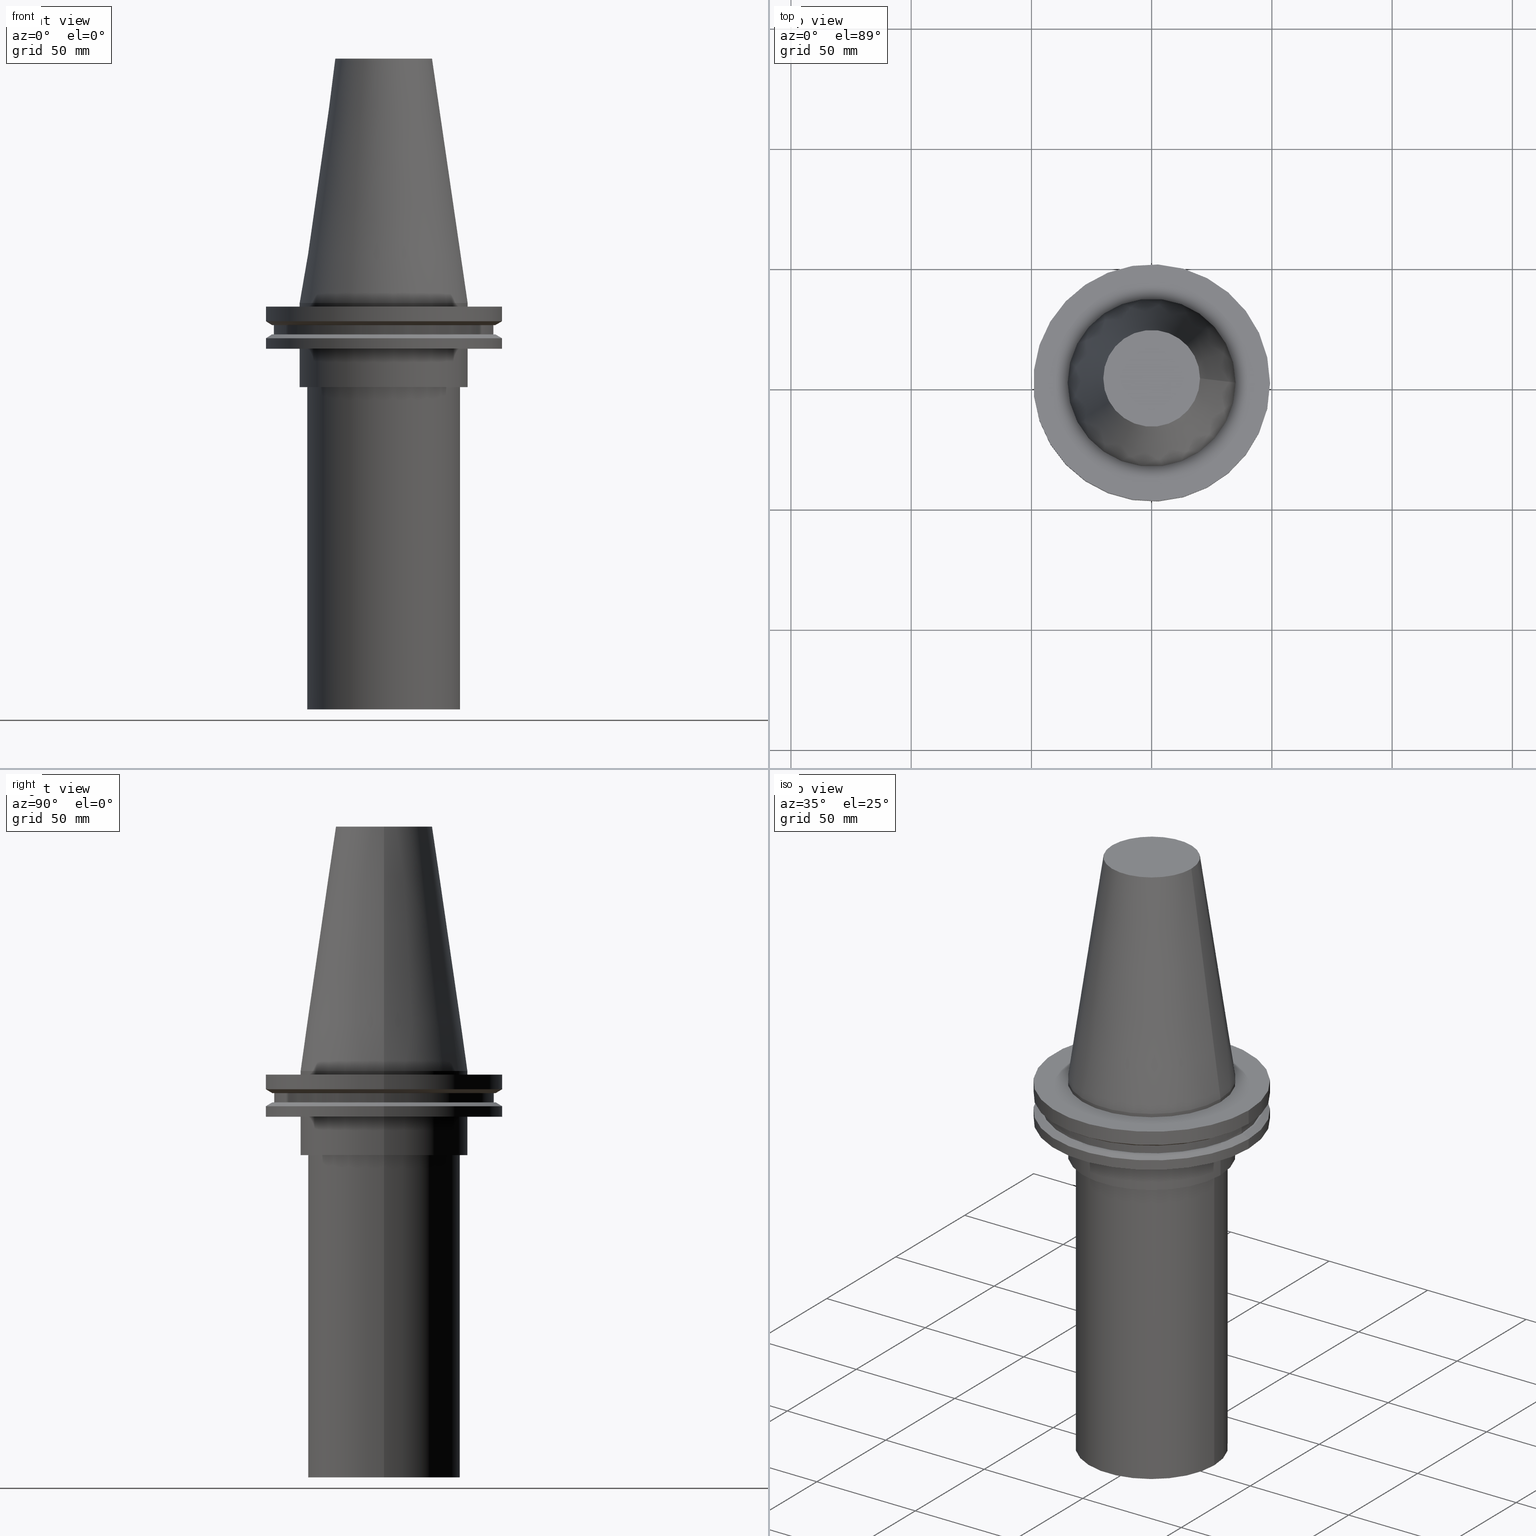
[diagram: canonical four-view strip — front | top / right | iso, engineering-drawing reading convention]
A machine part, canonical four-view strip (front | top / right | iso — engineering-drawing reading convention). The complete STEP part file that produces these views, byte-faithful:
ISO-10303-21;
HEADER;
FILE_DESCRIPTION (( 'STEP AP203' ),
    '1' );
FILE_NAME ('11.368.665.stp',
    '2022-03-09T15:22:32',
    ( '' ),
    ( '' ),
    'SwSTEP 2.0',
    'SolidWorks 2021',
    '' );
FILE_SCHEMA (( 'CONFIG_CONTROL_DESIGN' ));
ENDSEC;

DATA;
#1 = AXIS2_PLACEMENT_3D ( 'NONE', #275, #333, #384 ) ;
#2 = EDGE_LOOP ( 'NONE', ( #119 ) ) ;
#3 = EDGE_CURVE ( 'NONE', #378, #378, #23, .T. ) ;
#4 = CARTESIAN_POINT ( 'NONE',  ( 0.000000000000000000, 45.64500000000000313, -13.05499999999999794 ) ) ;
#5 = DIRECTION ( 'NONE',  ( -0.000000000000000000, -0.000000000000000000, 1.000000000000000000 ) ) ;
#6 = CC_DESIGN_PERSON_AND_ORGANIZATION_ASSIGNMENT ( #24, #110, ( #48 ) ) ;
#7 = CARTESIAN_POINT ( 'NONE',  ( 49.21500000000000341, 0.000000000000000000, -7.602389855251287187 ) ) ;
#8 = EDGE_LOOP ( 'NONE', ( #249 ) ) ;
#9 = PLANE ( 'NONE',  #140 ) ;
#10 = CIRCLE ( 'NONE', #30, 45.64500000000000313 ) ;
#11 = VERTEX_POINT ( 'NONE', #219 ) ;
#12 = CARTESIAN_POINT ( 'NONE',  ( 0.000000000000000000, 49.21499999999998920, -19.04999999999999716 ) ) ;
#13 = FACE_OUTER_BOUND ( 'NONE', #62, .T. ) ;
#14 = CARTESIAN_POINT ( 'NONE',  ( 34.92499999999999716, 0.000000000000000000, -19.04999999999999716 ) ) ;
#15 = DIRECTION ( 'NONE',  ( -0.000000000000000000, -0.000000000000000000, 1.000000000000000000 ) ) ;
#16 = VERTEX_POINT ( 'NONE', #46 ) ;
#17 = ADVANCED_FACE ( 'NONE', ( #238, #52 ), #115, .F. ) ;
#18 = APPROVAL_ROLE ( '' ) ;
#19 = DIRECTION ( 'NONE',  ( 1.000000000000000000, 0.000000000000000000, 0.000000000000000000 ) ) ;
#20 = EDGE_CURVE ( 'NONE', #352, #352, #197, .T. ) ;
#21 = AXIS2_PLACEMENT_3D ( 'NONE', #38, #215, #156 ) ;
#22 = EDGE_LOOP ( 'NONE', ( #152 ) ) ;
#23 = CIRCLE ( 'NONE', #71, 31.75000000000000000 ) ;
#24 = PERSON_AND_ORGANIZATION ( #216, #173 ) ;
#25 = EDGE_LOOP ( 'NONE', ( #157 ) ) ;
#26 = PERSON_AND_ORGANIZATION ( #216, #173 ) ;
#27 = EDGE_LOOP ( 'NONE', ( #111 ) ) ;
#28 = EDGE_CURVE ( 'NONE', #11, #11, #10, .T. ) ;
#29 = CIRCLE ( 'NONE', #271, 46.43919780457007818 ) ;
#30 = AXIS2_PLACEMENT_3D ( 'NONE', #235, #303, #142 ) ;
#31 = CARTESIAN_POINT ( 'NONE',  ( 0.000000000000000000, 0.000000000000000000, 101.5999999999999943 ) ) ;
#32 = EDGE_CURVE ( 'NONE', #128, #128, #366, .T. ) ;
#33 = EDGE_LOOP ( 'NONE', ( #96 ) ) ;
#34 = CIRCLE ( 'NONE', #313, 34.92499999999999005 ) ;
#35 = DIRECTION ( 'NONE',  ( -0.000000000000000000, -0.000000000000000000, 1.000000000000000000 ) ) ;
#36 = VERTEX_POINT ( 'NONE', #132 ) ;
#37 = EDGE_LOOP ( 'NONE', ( #117 ) ) ;
#38 = CARTESIAN_POINT ( 'NONE',  ( 0.000000000000000000, 0.000000000000000000, 0.000000000000000000 ) ) ;
#39 = ADVANCED_FACE ( 'NONE', ( #390, #356 ), #214, .T. ) ;
#40 =( LENGTH_UNIT ( ) NAMED_UNIT ( * ) SI_UNIT ( .MILLI., .METRE. ) );
#41 = CARTESIAN_POINT ( 'NONE',  ( 0.000000000000000000, 0.000000000000000000, -169.0000000000000000 ) ) ;
#42 = DIRECTION ( 'NONE',  ( 1.000000000000000000, 0.000000000000000000, 0.000000000000000000 ) ) ;
#43 = PRODUCT_DEFINITION ( 'UNKNOWN', '', #224, #207 ) ;
#44 = AXIS2_PLACEMENT_3D ( 'NONE', #211, #55, #334 ) ;
#45 = FACE_OUTER_BOUND ( 'NONE', #191, .T. ) ;
#46 = CARTESIAN_POINT ( 'NONE',  ( 46.43919780457007818, 0.000000000000000000, -9.204999999999991189 ) ) ;
#47 = ADVANCED_FACE ( 'NONE', ( #325, #204 ), #299, .T. ) ;
#48 = SECURITY_CLASSIFICATION ( '', '', #81 ) ;
#49 = APPLICATION_PROTOCOL_DEFINITION ( 'international standard', 'config_control_design', 1994, #94 ) ;
#50 = CC_DESIGN_DATE_AND_TIME_ASSIGNMENT ( #326, #171, ( #43 ) ) ;
#51 = DATE_TIME_ROLE ( 'classification_date' ) ;
#52 = FACE_BOUND ( 'NONE', #283, .T. ) ;
#53 = PERSON_AND_ORGANIZATION_ROLE ( 'creator' ) ;
#54 = EDGE_LOOP ( 'NONE', ( #365 ) ) ;
#55 = DIRECTION ( 'NONE',  ( -0.000000000000000000, -0.000000000000000000, 1.000000000000000000 ) ) ;
#56 = CARTESIAN_POINT ( 'NONE',  ( 0.000000000000000000, 0.000000000000000000, 0.000000000000000000 ) ) ;
#57 = ORIENTED_EDGE ( 'NONE', *, *, #64, .T. ) ;
#58 = DIRECTION ( 'NONE',  ( -1.000000000000000000, 0.000000000000000000, -0.000000000000000000 ) ) ;
#59 = EDGE_LOOP ( 'NONE', ( #69 ) ) ;
#60 = CIRCLE ( 'NONE', #296, 45.64500000000000313 ) ;
#61 = FACE_OUTER_BOUND ( 'NONE', #237, .T. ) ;
#62 = EDGE_LOOP ( 'NONE', ( #150 ) ) ;
#63 = DIRECTION ( 'NONE',  ( -0.000000000000000000, -0.000000000000000000, 1.000000000000000000 ) ) ;
#64 = EDGE_CURVE ( 'NONE', #36, #36, #322, .T. ) ;
#65 = FACE_BOUND ( 'NONE', #8, .T. ) ;
#66 = ORIENTED_EDGE ( 'NONE', *, *, #32, .F. ) ;
#67 = FACE_OUTER_BOUND ( 'NONE', #22, .T. ) ;
#68 = DIRECTION ( 'NONE',  ( 1.000000000000000000, 0.000000000000000000, 0.000000000000000000 ) ) ;
#69 = ORIENTED_EDGE ( 'NONE', *, *, #113, .F. ) ;
#70 = FACE_BOUND ( 'NONE', #315, .T. ) ;
#71 = AXIS2_PLACEMENT_3D ( 'NONE', #41, #126, #331 ) ;
#72 = CARTESIAN_POINT ( 'NONE',  ( 0.000000000000000000, 0.000000000000000000, -9.204999999999991189 ) ) ;
#73 = DIRECTION ( 'NONE',  ( -1.000000000000000000, 0.000000000000000000, -0.000000000000000000 ) ) ;
#74 = DIRECTION ( 'NONE',  ( 1.000000000000000000, 0.000000000000000000, 0.000000000000000000 ) ) ;
#75 = CC_DESIGN_PERSON_AND_ORGANIZATION_ASSIGNMENT ( #76, #53, ( #224 ) ) ;
#76 = PERSON_AND_ORGANIZATION ( #216, #173 ) ;
#77 = AXIS2_PLACEMENT_3D ( 'NONE', #270, #242, #106 ) ;
#78 = DIRECTION ( 'NONE',  ( -1.000000000000000000, 0.000000000000000000, 0.000000000000000000 ) ) ;
#79 = COORDINATED_UNIVERSAL_TIME_OFFSET ( 6, 0, .BEHIND. ) ;
#80 = DIRECTION ( 'NONE',  ( 1.000000000000000000, 0.000000000000000000, 0.000000000000000000 ) ) ;
#81 = SECURITY_CLASSIFICATION_LEVEL ( 'unclassified' ) ;
#82 = LOCAL_TIME ( 9, 22, 32.00000000000000000, #302 ) ;
#83 = ORIENTED_EDGE ( 'NONE', *, *, #280, .T. ) ;
#84 = DIRECTION ( 'NONE',  ( 1.000000000000000000, 0.000000000000000000, 0.000000000000000000 ) ) ;
#85 = UNCERTAINTY_MEASURE_WITH_UNIT (LENGTH_MEASURE( 1.000000000000000082E-05 ), #40, 'distance_accuracy_value', 'NONE');
#86 = DIRECTION ( 'NONE',  ( 0.000000000000000000, 0.000000000000000000, -1.000000000000000000 ) ) ;
#87 = DIRECTION ( 'NONE',  ( 0.000000000000000000, 0.000000000000000000, -1.000000000000000000 ) ) ;
#88 = AXIS2_PLACEMENT_3D ( 'NONE', #244, #86, #78 ) ;
#89 = EDGE_LOOP ( 'NONE', ( #221 ) ) ;
#90 = CARTESIAN_POINT ( 'NONE',  ( 0.000000000000000000, 0.000000000000000000, 101.5999999999999943 ) ) ;
#91 = CYLINDRICAL_SURFACE ( 'NONE', #272, 34.92499999999999005 ) ;
#92 = CC_DESIGN_APPROVAL ( #168, ( #48 ) ) ;
#93 = EDGE_LOOP ( 'NONE', ( #251 ) ) ;
#94 = APPLICATION_CONTEXT ( 'configuration controlled 3d designs of mechanical parts and assemblies' ) ;
#95 = CARTESIAN_POINT ( 'NONE',  ( 46.43919780457007818, 0.000000000000000000, -13.05499999999999794 ) ) ;
#96 = ORIENTED_EDGE ( 'NONE', *, *, #265, .T. ) ;
#97 = DIRECTION ( 'NONE',  ( 0.000000000000000000, -0.000000000000000000, 1.000000000000000000 ) ) ;
#98 = DIRECTION ( 'NONE',  ( -0.000000000000000000, -0.000000000000000000, 1.000000000000000000 ) ) ;
#99 = DIRECTION ( 'NONE',  ( -0.000000000000000000, -0.000000000000000000, 1.000000000000000000 ) ) ;
#100 = PLANE ( 'NONE',  #213 ) ;
#101 = CALENDAR_DATE ( 2022, 9, 3 ) ;
#102 = ADVANCED_FACE ( 'NONE', ( #112 ), #389, .F. ) ;
#103 = DATE_AND_TIME ( #383, #82 ) ;
#104 = LOCAL_TIME ( 9, 22, 32.00000000000000000, #143 ) ;
#105 = MECHANICAL_CONTEXT ( 'NONE', #94, 'mechanical' ) ;
#106 = DIRECTION ( 'NONE',  ( 1.000000000000000000, 0.000000000000000000, 0.000000000000000000 ) ) ;
#107 = MANIFOLD_SOLID_BREP ( 'CKB', #175 ) ;
#108 = APPROVAL_STATUS ( 'not_yet_approved' ) ;
#109 = DIRECTION ( 'NONE',  ( 0.000000000000000000, 0.000000000000000000, -1.000000000000000000 ) ) ;
#110 = PERSON_AND_ORGANIZATION_ROLE ( 'classification_officer' ) ;
#111 = ORIENTED_EDGE ( 'NONE', *, *, #20, .F. ) ;
#112 = FACE_OUTER_BOUND ( 'NONE', #345, .T. ) ;
#113 = EDGE_CURVE ( 'NONE', #286, #286, #228, .T. ) ;
#114 = AXIS2_PLACEMENT_3D ( 'NONE', #312, #35, #68 ) ;
#115 = PLANE ( 'NONE',  #308 ) ;
#116 = APPLICATION_CONTEXT ( 'configuration controlled 3d designs of mechanical parts and assemblies' ) ;
#117 = ORIENTED_EDGE ( 'NONE', *, *, #290, .T. ) ;
#118 = EDGE_CURVE ( 'NONE', #199, #199, #146, .T. ) ;
#119 = ORIENTED_EDGE ( 'NONE', *, *, #20, .T. ) ;
#120 = CYLINDRICAL_SURFACE ( 'NONE', #188, 49.21499999999999631 ) ;
#121 = APPROVAL ( #269, 'UNSPECIFIED' ) ;
#122 = EDGE_LOOP ( 'NONE', ( #367 ) ) ;
#123 = AXIS2_PLACEMENT_3D ( 'NONE', #257, #195, #320 ) ;
#124 = FACE_BOUND ( 'NONE', #93, .T. ) ;
#125 = CARTESIAN_POINT ( 'NONE',  ( 45.64500000000000313, 0.000000000000000000, -9.204999999999991189 ) ) ;
#126 = DIRECTION ( 'NONE',  ( -0.000000000000000000, -0.000000000000000000, 1.000000000000000000 ) ) ;
#127 = CARTESIAN_POINT ( 'NONE',  ( 0.000000000000000000, 0.000000000000000000, 0.000000000000000000 ) ) ;
#128 = VERTEX_POINT ( 'NONE', #259 ) ;
#129 = PLANE ( 'NONE',  #282 ) ;
#130 = ADVANCED_FACE ( 'NONE', ( #209, #179 ), #306, .F. ) ;
#131 = FACE_OUTER_BOUND ( 'NONE', #172, .T. ) ;
#132 = CARTESIAN_POINT ( 'NONE',  ( 20.10819343178871321, 0.000000000000000000, 101.5999999999999801 ) ) ;
#133 = DIRECTION ( 'NONE',  ( -0.000000000000000000, -0.000000000000000000, 1.000000000000000000 ) ) ;
#134 = CARTESIAN_POINT ( 'NONE',  ( 34.92499999999999716, 0.000000000000000000, -35.00000000000000000 ) ) ;
#135 = EDGE_CURVE ( 'NONE', #16, #16, #201, .T. ) ;
#136 = CALENDAR_DATE ( 2022, 9, 3 ) ;
#137 = PERSON_AND_ORGANIZATION ( #216, #173 ) ;
#138 = LOCAL_TIME ( 9, 22, 32.00000000000000000, #79 ) ;
#139 = CARTESIAN_POINT ( 'NONE',  ( 0.000000000000000000, 20.10819343178871321, 101.5999999999999943 ) ) ;
#140 = AXIS2_PLACEMENT_3D ( 'NONE', #295, #97, #382 ) ;
#141 = PERSON_AND_ORGANIZATION_ROLE ( 'creator' ) ;
#142 = DIRECTION ( 'NONE',  ( 1.000000000000000000, 0.000000000000000000, 0.000000000000000000 ) ) ;
#143 = COORDINATED_UNIVERSAL_TIME_OFFSET ( 6, 0, .BEHIND. ) ;
#144 = APPROVAL ( #174, 'UNSPECIFIED' ) ;
#145 = CC_DESIGN_SECURITY_CLASSIFICATION ( #48, ( #224 ) ) ;
#146 = CIRCLE ( 'NONE', #372, 34.92499999999999005 ) ;
#147 = PRODUCT ( '11.368.665', '11.368.665', '', ( #105 ) ) ;
#148 = CARTESIAN_POINT ( 'NONE',  ( 0.000000000000000000, 0.000000000000000000, -19.04999999999999716 ) ) ;
#149 = ADVANCED_FACE ( 'NONE', ( #61, #344 ), #91, .T. ) ;
#150 = ORIENTED_EDGE ( 'NONE', *, *, #280, .F. ) ;
#151 = DIRECTION ( 'NONE',  ( 1.000000000000000000, 0.000000000000000000, 0.000000000000000000 ) ) ;
#152 = ORIENTED_EDGE ( 'NONE', *, *, #113, .T. ) ;
#153 = CIRCLE ( 'NONE', #227, 49.21499999999998920 ) ;
#154 = ORIENTED_EDGE ( 'NONE', *, *, #210, .F. ) ;
#155 = ADVANCED_FACE ( 'NONE', ( #314, #368 ), #371, .T. ) ;
#156 = DIRECTION ( 'NONE',  ( -1.000000000000000000, 0.000000000000000000, 0.000000000000000000 ) ) ;
#157 = ORIENTED_EDGE ( 'NONE', *, *, #349, .F. ) ;
#158 = CYLINDRICAL_SURFACE ( 'NONE', #159, 45.64500000000000313 ) ;
#159 = AXIS2_PLACEMENT_3D ( 'NONE', #346, #133, #321 ) ;
#160 = AXIS2_PLACEMENT_3D ( 'NONE', #185, #63, #183 ) ;
#161 = DIRECTION ( 'NONE',  ( 1.000000000000000000, 0.000000000000000000, 0.000000000000000000 ) ) ;
#162 = DIRECTION ( 'NONE',  ( 1.000000000000000000, 0.000000000000000000, 0.000000000000000000 ) ) ;
#163 = CARTESIAN_POINT ( 'NONE',  ( 49.21499999999998920, 0.000000000000000000, -14.65761014474876944 ) ) ;
#164 = APPROVAL_PERSON_ORGANIZATION ( #297, #144, #18 ) ;
#165 = FACE_OUTER_BOUND ( 'NONE', #89, .T. ) ;
#166 = AXIS2_PLACEMENT_3D ( 'NONE', #353, #261, #73 ) ;
#167 = DIRECTION ( 'NONE',  ( 1.000000000000000000, 0.000000000000000000, 0.000000000000000000 ) ) ;
#168 = APPROVAL ( #108, 'UNSPECIFIED' ) ;
#169 = CALENDAR_DATE ( 2022, 9, 3 ) ;
#170 = DIRECTION ( 'NONE',  ( -0.000000000000000000, -0.000000000000000000, 1.000000000000000000 ) ) ;
#171 = DATE_TIME_ROLE ( 'creation_date' ) ;
#172 = EDGE_LOOP ( 'NONE', ( #388 ) ) ;
#173 = ORGANIZATION ( 'UNSPECIFIED', 'UNSPECIFIED', '' ) ;
#174 = APPROVAL_STATUS ( 'not_yet_approved' ) ;
#175 = CLOSED_SHELL ( 'NONE', ( #180, #102, #268, #47, #359, #155, #39, #130, #285, #17, #254, #186, #369, #149, #287, #305 ) ) ;
#176 = DIRECTION ( 'NONE',  ( 0.000000000000000000, -0.000000000000000000, 1.000000000000000000 ) ) ;
#177 = DATE_AND_TIME ( #136, #138 ) ;
#178 = EDGE_LOOP ( 'NONE', ( #309 ) ) ;
#179 = FACE_OUTER_BOUND ( 'NONE', #54, .T. ) ;
#180 = ADVANCED_FACE ( 'NONE', ( #246, #393 ), #248, .T. ) ;
#181 = AXIS2_PLACEMENT_3D ( 'NONE', #148, #232, #202 ) ;
#182 = ORIENTED_EDGE ( 'NONE', *, *, #265, .F. ) ;
#183 = DIRECTION ( 'NONE',  ( 1.000000000000000000, 0.000000000000000000, 0.000000000000000000 ) ) ;
#184 = ORIENTED_EDGE ( 'NONE', *, *, #3, .F. ) ;
#185 = CARTESIAN_POINT ( 'NONE',  ( 0.000000000000000000, 0.000000000000000000, 101.5999999999999943 ) ) ;
#186 = ADVANCED_FACE ( 'NONE', ( #339, #67 ), #120, .T. ) ;
#187 = ORIENTED_EDGE ( 'NONE', *, *, #28, .T. ) ;
#188 = AXIS2_PLACEMENT_3D ( 'NONE', #31, #5, #151 ) ;
#189 = FACE_OUTER_BOUND ( 'NONE', #59, .T. ) ;
#190 = CARTESIAN_POINT ( 'NONE',  ( 49.21499999999998920, 0.000000000000000000, -19.04999999999999716 ) ) ;
#191 = EDGE_LOOP ( 'NONE', ( #245 ) ) ;
#192 = DIRECTION ( 'NONE',  ( 1.000000000000000000, 0.000000000000000000, 0.000000000000000000 ) ) ;
#193 = VERTEX_POINT ( 'NONE', #134 ) ;
#194 = EDGE_LOOP ( 'NONE', ( #361 ) ) ;
#195 = DIRECTION ( 'NONE',  ( -0.000000000000000000, -0.000000000000000000, 1.000000000000000000 ) ) ;
#196 = FACE_OUTER_BOUND ( 'NONE', #338, .T. ) ;
#197 = CIRCLE ( 'NONE', #181, 34.92499999999999716 ) ;
#198 = DIRECTION ( 'NONE',  ( 0.000000000000000000, -0.000000000000000000, 1.000000000000000000 ) ) ;
#199 = VERTEX_POINT ( 'NONE', #374 ) ;
#200 = CONICAL_SURFACE ( 'NONE', #114, 46.43919780457007818, 1.047197551196575205 ) ;
#201 = CIRCLE ( 'NONE', #233, 46.43919780457007818 ) ;
#202 = DIRECTION ( 'NONE',  ( 1.000000000000000000, 0.000000000000000000, 0.000000000000000000 ) ) ;
#203 = PERSON_AND_ORGANIZATION ( #216, #173 ) ;
#204 = FACE_OUTER_BOUND ( 'NONE', #37, .T. ) ;
#205 = APPROVAL_DATE_TIME ( #357, #168 ) ;
#206 =( GEOMETRIC_REPRESENTATION_CONTEXT ( 3 ) GLOBAL_UNCERTAINTY_ASSIGNED_CONTEXT ( ( #85 ) ) GLOBAL_UNIT_ASSIGNED_CONTEXT ( ( #40, #298, #385 ) ) REPRESENTATION_CONTEXT ( 'NONE', 'WORKASPACE' ) );
#207 = DESIGN_CONTEXT ( 'detailed design', #116, 'design' ) ;
#208 = APPLICATION_PROTOCOL_DEFINITION ( 'international standard', 'config_control_design', 1994, #116 ) ;
#209 = FACE_BOUND ( 'NONE', #335, .T. ) ;
#210 = EDGE_CURVE ( 'NONE', #343, #343, #29, .T. ) ;
#211 = CARTESIAN_POINT ( 'NONE',  ( 0.000000000000000000, 0.000000000000000000, 101.5999999999999943 ) ) ;
#212 = CARTESIAN_POINT ( 'NONE',  ( 0.000000000000000000, 0.000000000000000000, -9.204999999999991189 ) ) ;
#213 = AXIS2_PLACEMENT_3D ( 'NONE', #12, #198, #260 ) ;
#214 = CONICAL_SURFACE ( 'NONE', #88, 49.21499999999998920, 1.047197551196554333 ) ;
#215 = DIRECTION ( 'NONE',  ( 0.000000000000000000, 0.000000000000000000, -1.000000000000000000 ) ) ;
#216 = PERSON ( 'UNSPECIFIED', 'UNSPECIFIED', 'UNSPECIFIED', ('UNSPECIFIED'), ('UNSPECIFIED'), ('UNSPECIFIED') ) ;
#217 = ORIENTED_EDGE ( 'NONE', *, *, #135, .F. ) ;
#218 = LOCAL_TIME ( 9, 22, 32.00000000000000000, #274 ) ;
#219 = CARTESIAN_POINT ( 'NONE',  ( 45.64500000000000313, 0.000000000000000000, -13.05499999999999794 ) ) ;
#220 = VERTEX_POINT ( 'NONE', #347 ) ;
#221 = ORIENTED_EDGE ( 'NONE', *, *, #290, .F. ) ;
#222 = VERTEX_POINT ( 'NONE', #163 ) ;
#223 = CARTESIAN_POINT ( 'NONE',  ( 0.000000000000000000, 0.000000000000000000, -35.00000000000000000 ) ) ;
#224 = PRODUCT_DEFINITION_FORMATION_WITH_SPECIFIED_SOURCE ( 'ANY', '', #147, .NOT_KNOWN. ) ;
#225 = DIRECTION ( 'NONE',  ( 1.000000000000000000, 0.000000000000000000, 0.000000000000000000 ) ) ;
#226 = FACE_OUTER_BOUND ( 'NONE', #394, .T. ) ;
#227 = AXIS2_PLACEMENT_3D ( 'NONE', #317, #284, #192 ) ;
#228 = CIRCLE ( 'NONE', #77, 49.21500000000000341 ) ;
#229 = CARTESIAN_POINT ( 'NONE',  ( 31.75000000000000000, 0.000000000000000000, -169.0000000000000000 ) ) ;
#230 = CARTESIAN_POINT ( 'NONE',  ( 0.000000000000000000, 31.75000000000000000, -169.0000000000000000 ) ) ;
#231 = APPROVAL_DATE_TIME ( #103, #121 ) ;
#232 = DIRECTION ( 'NONE',  ( -0.000000000000000000, -0.000000000000000000, 1.000000000000000000 ) ) ;
#233 = AXIS2_PLACEMENT_3D ( 'NONE', #212, #279, #336 ) ;
#234 = PERSON_AND_ORGANIZATION_ROLE ( 'design_owner' ) ;
#235 = CARTESIAN_POINT ( 'NONE',  ( 0.000000000000000000, 0.000000000000000000, -13.05499999999999794 ) ) ;
#236 = APPROVAL_ROLE ( '' ) ;
#237 = EDGE_LOOP ( 'NONE', ( #253 ) ) ;
#238 = FACE_OUTER_BOUND ( 'NONE', #311, .T. ) ;
#239 = ADVANCED_BREP_SHAPE_REPRESENTATION ( '11.368.665', ( #107, #301 ), #206 ) ;
#240 = CALENDAR_DATE ( 2022, 9, 3 ) ;
#241 = EDGE_LOOP ( 'NONE', ( #182 ) ) ;
#242 = DIRECTION ( 'NONE',  ( -0.000000000000000000, -0.000000000000000000, 1.000000000000000000 ) ) ;
#243 = PRODUCT_DEFINITION_SHAPE ( 'NONE', 'NONE',  #43 ) ;
#244 = CARTESIAN_POINT ( 'NONE',  ( 0.000000000000000000, 0.000000000000000000, -14.65761014474876944 ) ) ;
#245 = ORIENTED_EDGE ( 'NONE', *, *, #3, .T. ) ;
#246 = FACE_BOUND ( 'NONE', #194, .T. ) ;
#247 = CIRCLE ( 'NONE', #123, 31.75000000000000000 ) ;
#248 = CONICAL_SURFACE ( 'NONE', #21, 34.92499999999999005, 0.1448138465474119452 ) ;
#249 = ORIENTED_EDGE ( 'NONE', *, *, #135, .T. ) ;
#250 = DIRECTION ( 'NONE',  ( 1.000000000000000000, 0.000000000000000000, 0.000000000000000000 ) ) ;
#251 = ORIENTED_EDGE ( 'NONE', *, *, #349, .T. ) ;
#252 = DIRECTION ( 'NONE',  ( 1.000000000000000000, 0.000000000000000000, 0.000000000000000000 ) ) ;
#253 = ORIENTED_EDGE ( 'NONE', *, *, #118, .F. ) ;
#254 = ADVANCED_FACE ( 'NONE', ( #189, #65 ), #200, .T. ) ;
#255 = EDGE_LOOP ( 'NONE', ( #370 ) ) ;
#256 = AXIS2_PLACEMENT_3D ( 'NONE', #273, #170, #19 ) ;
#257 = CARTESIAN_POINT ( 'NONE',  ( 0.000000000000000000, 0.000000000000000000, -35.00000000000000000 ) ) ;
#258 = CC_DESIGN_PERSON_AND_ORGANIZATION_ASSIGNMENT ( #137, #234, ( #147 ) ) ;
#259 = CARTESIAN_POINT ( 'NONE',  ( 49.21499999999999631, 0.000000000000000000, -1.499999999999987566 ) ) ;
#260 = DIRECTION ( 'NONE',  ( 1.000000000000000000, 0.000000000000000000, 0.000000000000000000 ) ) ;
#261 = DIRECTION ( 'NONE',  ( 0.000000000000000000, 0.000000000000000000, -1.000000000000000000 ) ) ;
#262 = FACE_OUTER_BOUND ( 'NONE', #25, .T. ) ;
#263 = APPROVAL_PERSON_ORGANIZATION ( #276, #121, #354 ) ;
#264 = DIRECTION ( 'NONE',  ( 0.000000000000000000, -0.000000000000000000, 1.000000000000000000 ) ) ;
#265 = EDGE_CURVE ( 'NONE', #222, #222, #153, .T. ) ;
#266 = VERTEX_POINT ( 'NONE', #381 ) ;
#267 = PERSON_AND_ORGANIZATION ( #216, #173 ) ;
#268 = ADVANCED_FACE ( 'NONE', ( #124, #165 ), #9, .F. ) ;
#269 = APPROVAL_STATUS ( 'not_yet_approved' ) ;
#270 = CARTESIAN_POINT ( 'NONE',  ( 0.000000000000000000, 0.000000000000000000, -7.602389855251287187 ) ) ;
#271 = AXIS2_PLACEMENT_3D ( 'NONE', #281, #395, #250 ) ;
#272 = AXIS2_PLACEMENT_3D ( 'NONE', #90, #341, #252 ) ;
#273 = CARTESIAN_POINT ( 'NONE',  ( 0.000000000000000000, 0.000000000000000000, 101.5999999999999801 ) ) ;
#274 = COORDINATED_UNIVERSAL_TIME_OFFSET ( 6, 0, .BEHIND. ) ;
#275 = CARTESIAN_POINT ( 'NONE',  ( 0.000000000000000000, 0.000000000000000000, -1.499999999999987566 ) ) ;
#276 = PERSON_AND_ORGANIZATION ( #216, #173 ) ;
#277 = APPROVAL_PERSON_ORGANIZATION ( #26, #168, #236 ) ;
#278 = EDGE_LOOP ( 'NONE', ( #319 ) ) ;
#279 = DIRECTION ( 'NONE',  ( -0.000000000000000000, -0.000000000000000000, 1.000000000000000000 ) ) ;
#280 = EDGE_CURVE ( 'NONE', #293, #293, #60, .T. ) ;
#281 = CARTESIAN_POINT ( 'NONE',  ( 0.000000000000000000, 0.000000000000000000, -13.05499999999999794 ) ) ;
#282 = AXIS2_PLACEMENT_3D ( 'NONE', #230, #264, #74 ) ;
#283 = EDGE_LOOP ( 'NONE', ( #83 ) ) ;
#284 = DIRECTION ( 'NONE',  ( -0.000000000000000000, -0.000000000000000000, 1.000000000000000000 ) ) ;
#285 = ADVANCED_FACE ( 'NONE', ( #13, #226 ), #158, .T. ) ;
#286 = VERTEX_POINT ( 'NONE', #7 ) ;
#287 = ADVANCED_FACE ( 'NONE', ( #262, #45 ), #289, .T. ) ;
#288 = FACE_BOUND ( 'NONE', #2, .T. ) ;
#289 = CYLINDRICAL_SURFACE ( 'NONE', #386, 31.75000000000000000 ) ;
#290 = EDGE_CURVE ( 'NONE', #193, #193, #342, .T. ) ;
#291 = DIRECTION ( 'NONE',  ( -0.000000000000000000, -0.000000000000000000, 1.000000000000000000 ) ) ;
#292 = LOCAL_TIME ( 9, 22, 32.00000000000000000, #300 ) ;
#293 = VERTEX_POINT ( 'NONE', #125 ) ;
#294 = CC_DESIGN_DATE_AND_TIME_ASSIGNMENT ( #304, #51, ( #48 ) ) ;
#295 = CARTESIAN_POINT ( 'NONE',  ( 0.000000000000000000, 34.92499999999999716, -35.00000000000000000 ) ) ;
#296 = AXIS2_PLACEMENT_3D ( 'NONE', #72, #99, #162 ) ;
#297 = PERSON_AND_ORGANIZATION ( #216, #173 ) ;
#298 =( NAMED_UNIT ( * ) PLANE_ANGLE_UNIT ( ) SI_UNIT ( $, .RADIAN. ) );
#299 = CYLINDRICAL_SURFACE ( 'NONE', #44, 34.92499999999999716 ) ;
#300 = COORDINATED_UNIVERSAL_TIME_OFFSET ( 6, 0, .BEHIND. ) ;
#301 = AXIS2_PLACEMENT_3D ( 'NONE', #56, #332, #167 ) ;
#302 = COORDINATED_UNIVERSAL_TIME_OFFSET ( 6, 0, .BEHIND. ) ;
#303 = DIRECTION ( 'NONE',  ( -0.000000000000000000, -0.000000000000000000, 1.000000000000000000 ) ) ;
#304 = DATE_AND_TIME ( #240, #292 ) ;
#305 = ADVANCED_FACE ( 'NONE', ( #196 ), #129, .F. ) ;
#306 = PLANE ( 'NONE',  #337 ) ;
#307 = AXIS2_PLACEMENT_3D ( 'NONE', #223, #351, #42 ) ;
#308 = AXIS2_PLACEMENT_3D ( 'NONE', #387, #176, #80 ) ;
#309 = ORIENTED_EDGE ( 'NONE', *, *, #392, .T. ) ;
#310 = DIRECTION ( 'NONE',  ( -1.000000000000000000, 0.000000000000000000, -0.000000000000000000 ) ) ;
#311 = EDGE_LOOP ( 'NONE', ( #217 ) ) ;
#312 = CARTESIAN_POINT ( 'NONE',  ( 0.000000000000000000, 0.000000000000000000, -9.204999999999991189 ) ) ;
#313 = AXIS2_PLACEMENT_3D ( 'NONE', #376, #98, #225 ) ;
#314 = FACE_OUTER_BOUND ( 'NONE', #241, .T. ) ;
#315 = EDGE_LOOP ( 'NONE', ( #358 ) ) ;
#316 = PRODUCT_RELATED_PRODUCT_CATEGORY ( 'detail', '', ( #147 ) ) ;
#317 = CARTESIAN_POINT ( 'NONE',  ( 0.000000000000000000, 0.000000000000000000, -14.65761014474876944 ) ) ;
#318 = VERTEX_POINT ( 'NONE', #190 ) ;
#319 = ORIENTED_EDGE ( 'NONE', *, *, #32, .T. ) ;
#320 = DIRECTION ( 'NONE',  ( 1.000000000000000000, 0.000000000000000000, 0.000000000000000000 ) ) ;
#321 = DIRECTION ( 'NONE',  ( 1.000000000000000000, 0.000000000000000000, 0.000000000000000000 ) ) ;
#322 = CIRCLE ( 'NONE', #256, 20.10819343178871321 ) ;
#323 = PERSON_AND_ORGANIZATION_ROLE ( 'design_supplier' ) ;
#324 = CC_DESIGN_PERSON_AND_ORGANIZATION_ASSIGNMENT ( #203, #323, ( #224 ) ) ;
#325 = FACE_OUTER_BOUND ( 'NONE', #27, .T. ) ;
#326 = DATE_AND_TIME ( #169, #218 ) ;
#327 = ORIENTED_EDGE ( 'NONE', *, *, #28, .F. ) ;
#328 = CARTESIAN_POINT ( 'NONE',  ( 0.000000000000000000, 0.000000000000000000, 0.000000000000000000 ) ) ;
#329 = SHAPE_DEFINITION_REPRESENTATION ( #243, #239 ) ;
#330 = CC_DESIGN_APPROVAL ( #121, ( #224 ) ) ;
#331 = DIRECTION ( 'NONE',  ( 1.000000000000000000, 0.000000000000000000, 0.000000000000000000 ) ) ;
#332 = DIRECTION ( 'NONE',  ( 0.000000000000000000, 0.000000000000000000, 1.000000000000000000 ) ) ;
#333 = DIRECTION ( 'NONE',  ( -0.000000000000000000, -0.000000000000000000, 1.000000000000000000 ) ) ;
#334 = DIRECTION ( 'NONE',  ( 1.000000000000000000, 0.000000000000000000, 0.000000000000000000 ) ) ;
#335 = EDGE_LOOP ( 'NONE', ( #327 ) ) ;
#336 = DIRECTION ( 'NONE',  ( 1.000000000000000000, 0.000000000000000000, 0.000000000000000000 ) ) ;
#337 = AXIS2_PLACEMENT_3D ( 'NONE', #4, #87, #310 ) ;
#338 = EDGE_LOOP ( 'NONE', ( #184 ) ) ;
#339 = FACE_OUTER_BOUND ( 'NONE', #340, .T. ) ;
#340 = EDGE_LOOP ( 'NONE', ( #66 ) ) ;
#341 = DIRECTION ( 'NONE',  ( -0.000000000000000000, -0.000000000000000000, 1.000000000000000000 ) ) ;
#342 = CIRCLE ( 'NONE', #307, 34.92499999999999716 ) ;
#343 = VERTEX_POINT ( 'NONE', #95 ) ;
#344 = FACE_OUTER_BOUND ( 'NONE', #178, .T. ) ;
#345 = EDGE_LOOP ( 'NONE', ( #57 ) ) ;
#346 = CARTESIAN_POINT ( 'NONE',  ( 0.000000000000000000, 0.000000000000000000, 101.5999999999999943 ) ) ;
#347 = CARTESIAN_POINT ( 'NONE',  ( 34.92499999999999005, 0.000000000000000000, -1.499999999999987566 ) ) ;
#348 = CARTESIAN_POINT ( 'NONE',  ( 0.000000000000000000, 0.000000000000000000, -19.04999999999999716 ) ) ;
#349 = EDGE_CURVE ( 'NONE', #266, #266, #247, .T. ) ;
#350 = CIRCLE ( 'NONE', #379, 49.21499999999998920 ) ;
#351 = DIRECTION ( 'NONE',  ( -0.000000000000000000, -0.000000000000000000, 1.000000000000000000 ) ) ;
#352 = VERTEX_POINT ( 'NONE', #14 ) ;
#353 = CARTESIAN_POINT ( 'NONE',  ( 0.000000000000000000, 49.21499999999999631, -1.499999999999992895 ) ) ;
#354 = APPROVAL_ROLE ( '' ) ;
#355 = AXIS2_PLACEMENT_3D ( 'NONE', #139, #109, #58 ) ;
#356 = FACE_OUTER_BOUND ( 'NONE', #33, .T. ) ;
#357 = DATE_AND_TIME ( #101, #104 ) ;
#358 = ORIENTED_EDGE ( 'NONE', *, *, #392, .F. ) ;
#359 = ADVANCED_FACE ( 'NONE', ( #131, #288 ), #100, .F. ) ;
#360 = APPROVAL_DATE_TIME ( #177, #144 ) ;
#361 = ORIENTED_EDGE ( 'NONE', *, *, #64, .F. ) ;
#362 = DIRECTION ( 'NONE',  ( -0.000000000000000000, -0.000000000000000000, 1.000000000000000000 ) ) ;
#363 = CC_DESIGN_PERSON_AND_ORGANIZATION_ASSIGNMENT ( #267, #141, ( #43 ) ) ;
#364 = EDGE_CURVE ( 'NONE', #318, #318, #350, .T. ) ;
#365 = ORIENTED_EDGE ( 'NONE', *, *, #210, .T. ) ;
#366 = CIRCLE ( 'NONE', #1, 49.21499999999999631 ) ;
#367 = ORIENTED_EDGE ( 'NONE', *, *, #118, .T. ) ;
#368 = FACE_OUTER_BOUND ( 'NONE', #255, .T. ) ;
#369 = ADVANCED_FACE ( 'NONE', ( #70, #380 ), #377, .F. ) ;
#370 = ORIENTED_EDGE ( 'NONE', *, *, #364, .T. ) ;
#371 = CYLINDRICAL_SURFACE ( 'NONE', #160, 49.21499999999998920 ) ;
#372 = AXIS2_PLACEMENT_3D ( 'NONE', #328, #362, #84 ) ;
#373 = EDGE_LOOP ( 'NONE', ( #154 ) ) ;
#374 = CARTESIAN_POINT ( 'NONE',  ( 34.92499999999999005, 0.000000000000000000, 0.000000000000000000 ) ) ;
#375 = DIRECTION ( 'NONE',  ( 1.000000000000000000, 0.000000000000000000, 0.000000000000000000 ) ) ;
#376 = CARTESIAN_POINT ( 'NONE',  ( 0.000000000000000000, 0.000000000000000000, -1.499999999999987566 ) ) ;
#377 = PLANE ( 'NONE',  #166 ) ;
#378 = VERTEX_POINT ( 'NONE', #229 ) ;
#379 = AXIS2_PLACEMENT_3D ( 'NONE', #348, #15, #375 ) ;
#380 = FACE_OUTER_BOUND ( 'NONE', #278, .T. ) ;
#381 = CARTESIAN_POINT ( 'NONE',  ( 31.75000000000000000, 0.000000000000000000, -35.00000000000000000 ) ) ;
#382 = DIRECTION ( 'NONE',  ( 1.000000000000000000, 0.000000000000000000, 0.000000000000000000 ) ) ;
#383 = CALENDAR_DATE ( 2022, 9, 3 ) ;
#384 = DIRECTION ( 'NONE',  ( 1.000000000000000000, 0.000000000000000000, 0.000000000000000000 ) ) ;
#385 =( NAMED_UNIT ( * ) SI_UNIT ( $, .STERADIAN. ) SOLID_ANGLE_UNIT ( ) );
#386 = AXIS2_PLACEMENT_3D ( 'NONE', #127, #291, #161 ) ;
#387 = CARTESIAN_POINT ( 'NONE',  ( 0.000000000000000000, 46.43919780457007818, -9.204999999999998295 ) ) ;
#388 = ORIENTED_EDGE ( 'NONE', *, *, #364, .F. ) ;
#389 = PLANE ( 'NONE',  #355 ) ;
#390 = FACE_BOUND ( 'NONE', #373, .T. ) ;
#391 = CC_DESIGN_APPROVAL ( #144, ( #43 ) ) ;
#392 = EDGE_CURVE ( 'NONE', #220, #220, #34, .T. ) ;
#393 = FACE_OUTER_BOUND ( 'NONE', #122, .T. ) ;
#394 = EDGE_LOOP ( 'NONE', ( #187 ) ) ;
#395 = DIRECTION ( 'NONE',  ( -0.000000000000000000, -0.000000000000000000, 1.000000000000000000 ) ) ;
ENDSEC;
END-ISO-10303-21;
